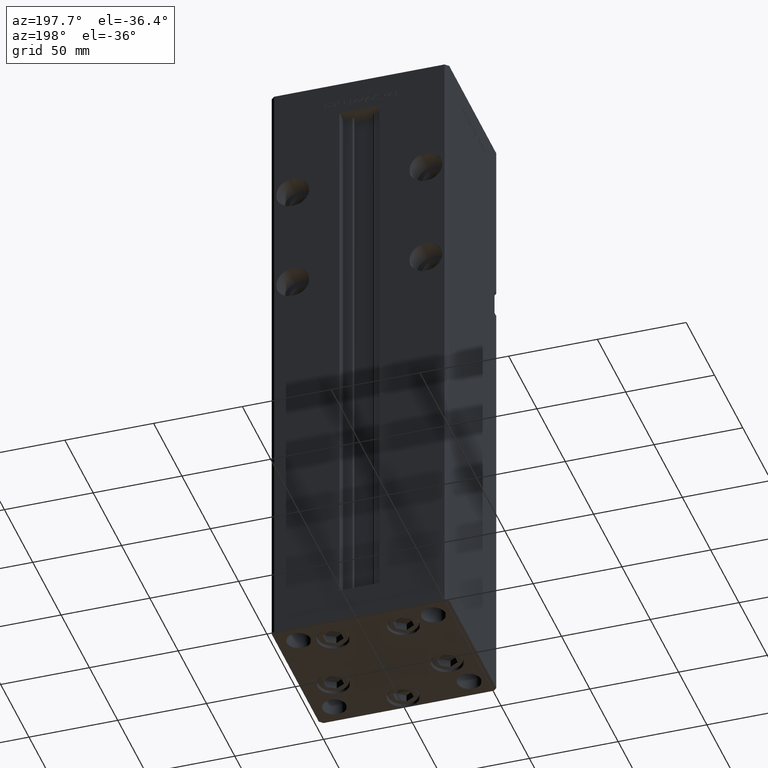
[diagram: clean part render]
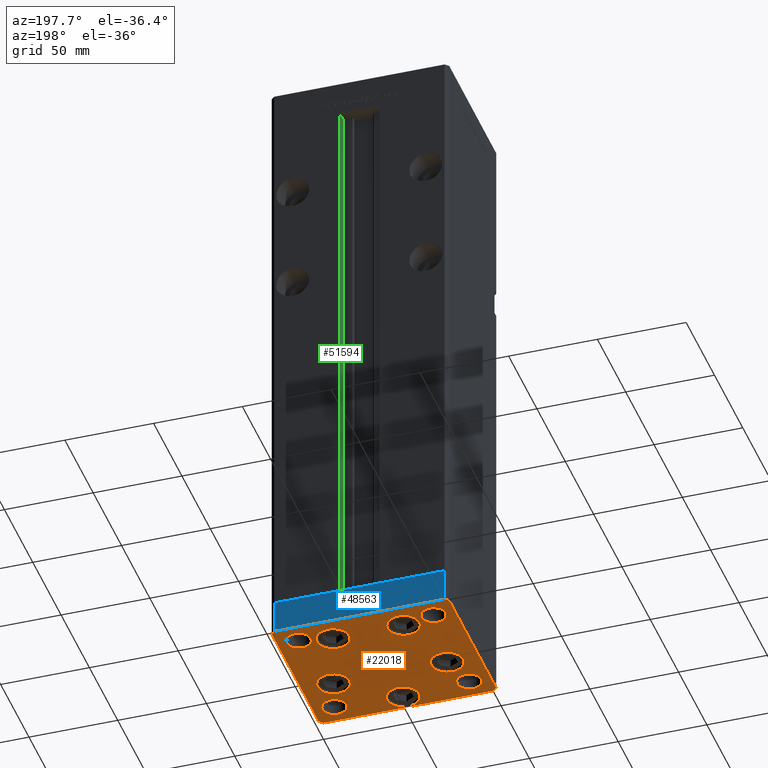
[diagram: same view with three faces highlighted in distinct colors, each labeled with its STEP entity id]
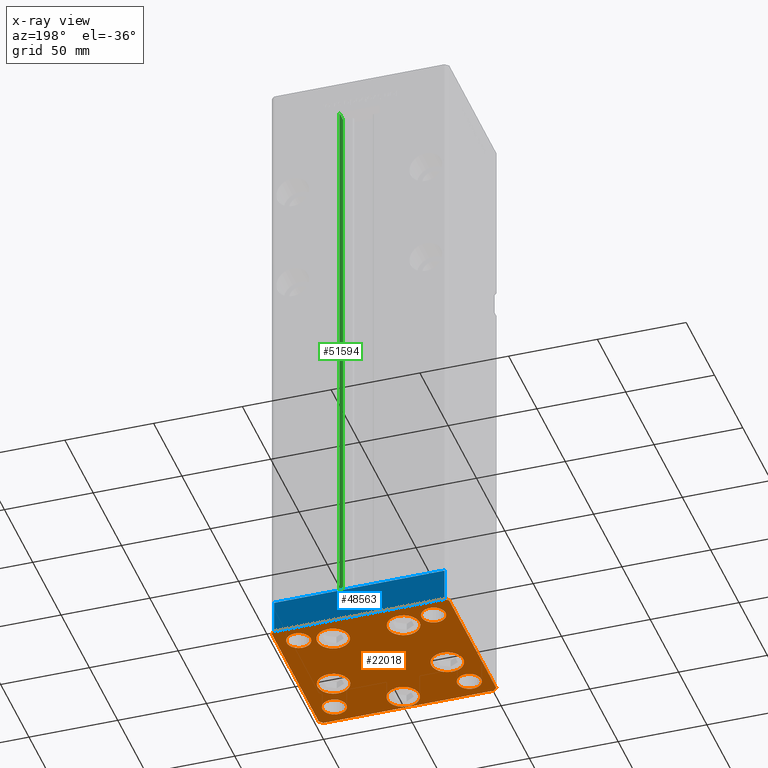
[diagram: x-ray of the same camera — body ghosted, the three highlighted faces saturated]
A machine part, auxiliary view with three faces highlighted in distinct colors.
The next image is the same camera in x-ray (body ghosted, the three faces saturated) — at least one of them is partly hidden behind the body in this view.
Their STEP definitions:

[orange] entity #22018 — the highlighted planar face has unit normal (0, 0, -1).
#442 = ORIENTED_EDGE ( 'NONE', *, *, #49301, .T. ) ;
#770 = VERTEX_POINT ( 'NONE', #25082 ) ;
#813 = LINE ( 'NONE', #26330, #30819 ) ;
#1124 = CARTESIAN_POINT ( 'NONE',  ( -41.05550741379015278, -11.33333333333333925, 0.000000000000000000 ) ) ;
#1313 = VERTEX_POINT ( 'NONE', #20926 ) ;
#1496 = DIRECTION ( 'NONE',  ( 1.000000000000000000, 0.000000000000000000, 0.000000000000000000 ) ) ;
#1670 = CARTESIAN_POINT ( 'NONE',  ( 38.00000000000000000, 31.49999999999999289, 0.000000000000000000 ) ) ;
#1911 = VERTEX_POINT ( 'NONE', #36591 ) ;
#1967 = VERTEX_POINT ( 'NONE', #36054 ) ;
#2171 = CARTESIAN_POINT ( 'NONE',  ( -10.82068048781373903, 27.62499999999999645, 0.000000000000000000 ) ) ;
#3031 = CARTESIAN_POINT ( 'NONE',  ( -37.99999999999999289, -31.50000000000000000, 0.000000000000000000 ) ) ;
#3174 = FACE_BOUND ( 'NONE', #23660, .T. ) ;
#3301 = DIRECTION ( 'NONE',  ( 1.000000000000000000, 0.000000000000000000, 0.000000000000000000 ) ) ;
#3444 = FACE_BOUND ( 'NONE', #9902, .T. ) ;
#3625 = DIRECTION ( 'NONE',  ( 1.000000000000000000, 0.000000000000000000, 0.000000000000000000 ) ) ;
#3669 = DIRECTION ( 'NONE',  ( 1.000000000000000000, 0.000000000000000000, 0.000000000000000000 ) ) ;
#3917 = VERTEX_POINT ( 'NONE', #43814 ) ;
#4086 = DIRECTION ( 'NONE',  ( 1.000000000000000000, 0.000000000000000000, 0.000000000000000000 ) ) ;
#4414 = ORIENTED_EDGE ( 'NONE', *, *, #47294, .T. ) ;
#4649 = CIRCLE ( 'NONE', #21803, 6.749999999999999112 ) ;
#4980 = DIRECTION ( 'NONE',  ( 1.000000000000000000, 0.000000000000000000, 0.000000000000000000 ) ) ;
#5003 = DIRECTION ( 'NONE',  ( 0.000000000000000000, -0.000000000000000000, -1.000000000000000000 ) ) ;
#5020 = VERTEX_POINT ( 'NONE', #13724 ) ;
#5283 = CARTESIAN_POINT ( 'NONE',  ( -50.00000000000000000, -41.50000000000000000, 0.000000000000000000 ) ) ;
#5654 = DIRECTION ( 'NONE',  ( 1.000000000000000000, 0.000000000000000000, 0.000000000000000000 ) ) ;
#5802 = CARTESIAN_POINT ( 'NONE',  ( 4.163799117101000559E-15, -34.00000000000000000, 0.000000000000000000 ) ) ;
#5861 = VERTEX_POINT ( 'NONE', #7631 ) ;
#6026 = VECTOR ( 'NONE', #18346, 1000.000000000000000 ) ;
#6475 = EDGE_CURVE ( 'NONE', #40592, #5861, #13080, .T. ) ;
#6480 = LINE ( 'NONE', #38743, #8886 ) ;
#7154 = VERTEX_POINT ( 'NONE', #1124 ) ;
#7214 = CARTESIAN_POINT ( 'NONE',  ( 0.000000000000000000, 0.000000000000000000, 0.000000000000000000 ) ) ;
#7306 = EDGE_CURVE ( 'NONE', #25711, #48736, #47472, .T. ) ;
#7313 = VECTOR ( 'NONE', #25738, 1000.000000000000114 ) ;
#7359 = DIRECTION ( 'NONE',  ( -0.000000000000000000, 0.000000000000000000, 1.000000000000000000 ) ) ;
#7425 = CARTESIAN_POINT ( 'NONE',  ( -32.05550741379015278, -11.33333333333333925, 0.000000000000000000 ) ) ;
#7631 = CARTESIAN_POINT ( 'NONE',  ( -47.99999999999999289, -43.50000000000001421, 0.000000000000000000 ) ) ;
#7756 = AXIS2_PLACEMENT_3D ( 'NONE', #21316, #21054, #17031 ) ;
#7814 = VERTEX_POINT ( 'NONE', #47629 ) ;
#7998 = EDGE_CURVE ( 'NONE', #50356, #10038, #6480, .T. ) ;
#8063 = EDGE_CURVE ( 'NONE', #31669, #18444, #40618, .T. ) ;
#8078 = DIRECTION ( 'NONE',  ( 1.000000000000000000, 0.000000000000000000, 0.000000000000000000 ) ) ;
#8886 = VECTOR ( 'NONE', #10007, 1000.000000000000000 ) ;
#8952 = ORIENTED_EDGE ( 'NONE', *, *, #34803, .T. ) ;
#9023 = CARTESIAN_POINT ( 'NONE',  ( -47.99999999999999289, -43.50000000000001421, 0.000000000000000000 ) ) ;
#9197 = DIRECTION ( 'NONE',  ( 1.000000000000000000, 0.000000000000000000, 0.000000000000000000 ) ) ;
#9372 = CARTESIAN_POINT ( 'NONE',  ( 49.99999999999992184, 41.49999999999998579, 0.000000000000000000 ) ) ;
#9563 = AXIS2_PLACEMENT_3D ( 'NONE', #26098, #42494, #34698 ) ;
#9887 = EDGE_CURVE ( 'NONE', #1967, #5020, #4649, .T. ) ;
#9902 = EDGE_LOOP ( 'NONE', ( #50190, #21734 ) ) ;
#10002 = CARTESIAN_POINT ( 'NONE',  ( -38.00000000000000000, 31.50000000000000000, 0.000000000000000000 ) ) ;
#10007 = DIRECTION ( 'NONE',  ( -1.000000000000000000, -3.614007241618350743E-16, 0.000000000000000000 ) ) ;
#10038 = VERTEX_POINT ( 'NONE', #15348 ) ;
#10108 = EDGE_CURVE ( 'NONE', #1911, #7814, #48388, .T. ) ;
#10748 = CARTESIAN_POINT ( 'NONE',  ( 32.05550741379015278, -11.33333333333333037, 0.000000000000000000 ) ) ;
#11147 = AXIS2_PLACEMENT_3D ( 'NONE', #27907, #35991, #31679 ) ;
#11248 = DIRECTION ( 'NONE',  ( -0.000000000000000000, 0.000000000000000000, 1.000000000000000000 ) ) ;
#11273 = VERTEX_POINT ( 'NONE', #21648 ) ;
#11400 = CARTESIAN_POINT ( 'NONE',  ( -38.00000000000000000, 31.50000000000000000, 0.000000000000000000 ) ) ;
#11517 = FACE_BOUND ( 'NONE', #42816, .T. ) ;
#11760 = EDGE_LOOP ( 'NONE', ( #21967, #442 ) ) ;
#12159 = CARTESIAN_POINT ( 'NONE',  ( 38.00000000000000000, -31.49999999999999289, 0.000000000000000000 ) ) ;
#12358 = CARTESIAN_POINT ( 'NONE',  ( 23.05550741379014923, -11.33333333333333037, 0.000000000000000000 ) ) ;
#12426 = ORIENTED_EDGE ( 'NONE', *, *, #41968, .F. ) ;
#12535 = DIRECTION ( 'NONE',  ( 0.000000000000000000, -0.000000000000000000, -1.000000000000000000 ) ) ;
#12804 = ORIENTED_EDGE ( 'NONE', *, *, #6475, .T. ) ;
#13080 = LINE ( 'NONE', #5283, #38859 ) ;
#13467 = EDGE_CURVE ( 'NONE', #11273, #50356, #46159, .T. ) ;
#13591 = CIRCLE ( 'NONE', #16154, 9.000000000000001776 ) ;
#13724 = CARTESIAN_POINT ( 'NONE',  ( 31.25000000000000000, 31.49999999999999289, 0.000000000000000000 ) ) ;
#13742 = CIRCLE ( 'NONE', #11147, 9.000000000000000000 ) ;
#14737 = CARTESIAN_POINT ( 'NONE',  ( 41.05550741379015278, -11.33333333333332860, 0.000000000000000000 ) ) ;
#14799 = CARTESIAN_POINT ( 'NONE',  ( 10.82068048781373193, 27.62500000000000000, 0.000000000000000000 ) ) ;
#14829 = ORIENTED_EDGE ( 'NONE', *, *, #7998, .T. ) ;
#15276 = FACE_BOUND ( 'NONE', #23020, .T. ) ;
#15348 = CARTESIAN_POINT ( 'NONE',  ( -48.00000000000000711, 43.49999999999996447, 0.000000000000000000 ) ) ;
#15401 = DIRECTION ( 'NONE',  ( 1.000000000000000000, 0.000000000000000000, 0.000000000000000000 ) ) ;
#16078 = FACE_BOUND ( 'NONE', #47770, .T. ) ;
#16154 = AXIS2_PLACEMENT_3D ( 'NONE', #10748, #27375, #27908 ) ;
#16857 = CARTESIAN_POINT ( 'NONE',  ( 50.00000000000000000, -41.49999999999999289, 0.000000000000000000 ) ) ;
#17031 = DIRECTION ( 'NONE',  ( 1.000000000000000000, 0.000000000000000000, 0.000000000000000000 ) ) ;
#17454 = ORIENTED_EDGE ( 'NONE', *, *, #44302, .T. ) ;
#17490 = CARTESIAN_POINT ( 'NONE',  ( -31.25000000000000000, 31.50000000000000000, 0.000000000000000000 ) ) ;
#18234 = ORIENTED_EDGE ( 'NONE', *, *, #39343, .T. ) ;
#18346 = DIRECTION ( 'NONE',  ( -0.7071067811865463515, -0.7071067811865487940, 0.000000000000000000 ) ) ;
#18444 = VERTEX_POINT ( 'NONE', #2171 ) ;
#18473 = EDGE_CURVE ( 'NONE', #52485, #33515, #30596, .T. ) ;
#19254 = CARTESIAN_POINT ( 'NONE',  ( 47.99999999999999289, -43.50000000000001421, 0.000000000000000000 ) ) ;
#19419 = DIRECTION ( 'NONE',  ( 0.000000000000000000, -0.000000000000000000, -1.000000000000000000 ) ) ;
#19710 = CARTESIAN_POINT ( 'NONE',  ( -28.82068048781373548, 27.62499999999999645, 0.000000000000000000 ) ) ;
#19777 = CIRCLE ( 'NONE', #36081, 6.749999999999999112 ) ;
#20218 = CARTESIAN_POINT ( 'NONE',  ( 32.05550741379015278, -11.33333333333333037, 0.000000000000000000 ) ) ;
#20443 = AXIS2_PLACEMENT_3D ( 'NONE', #20218, #40912, #3301 ) ;
#20733 = DIRECTION ( 'NONE',  ( 0.7071067811865463515, 0.7071067811865487940, 0.000000000000000000 ) ) ;
#20926 = CARTESIAN_POINT ( 'NONE',  ( -44.75000000000000000, 31.50000000000000000, 0.000000000000000000 ) ) ;
#21054 = DIRECTION ( 'NONE',  ( 0.000000000000000000, -0.000000000000000000, -1.000000000000000000 ) ) ;
#21316 = CARTESIAN_POINT ( 'NONE',  ( -32.05550741379015278, -11.33333333333333925, 0.000000000000000000 ) ) ;
#21459 = EDGE_CURVE ( 'NONE', #1313, #24065, #22880, .T. ) ;
#21547 = CARTESIAN_POINT ( 'NONE',  ( 38.00000000000000000, 31.49999999999999289, 0.000000000000000000 ) ) ;
#21648 = CARTESIAN_POINT ( 'NONE',  ( 49.99999999999992184, 41.49999999999998579, 0.000000000000000000 ) ) ;
#21734 = ORIENTED_EDGE ( 'NONE', *, *, #38108, .T. ) ;
#21803 = AXIS2_PLACEMENT_3D ( 'NONE', #1670, #46548, #42518 ) ;
#21967 = ORIENTED_EDGE ( 'NONE', *, *, #8063, .T. ) ;
#22018 = ADVANCED_FACE ( 'NONE', ( #35690, #31647, #3174, #11517, #52080, #23322, #3444, #16078, #28143, #15276 ), #48033, .T. ) ;
#22201 = AXIS2_PLACEMENT_3D ( 'NONE', #21547, #41691, #9197 ) ;
#22504 = ORIENTED_EDGE ( 'NONE', *, *, #26318, .F. ) ;
#22864 = DIRECTION ( 'NONE',  ( 1.000000000000000000, 0.000000000000000000, 0.000000000000000000 ) ) ;
#22880 = CIRCLE ( 'NONE', #50342, 6.749999999999999112 ) ;
#23020 = EDGE_LOOP ( 'NONE', ( #8952, #44659 ) ) ;
#23157 = LINE ( 'NONE', #27175, #6026 ) ;
#23322 = FACE_BOUND ( 'NONE', #46710, .T. ) ;
#23660 = EDGE_LOOP ( 'NONE', ( #17454, #18234 ) ) ;
#24026 = CIRCLE ( 'NONE', #7756, 9.000000000000001776 ) ;
#24037 = CARTESIAN_POINT ( 'NONE',  ( 38.00000000000000000, -31.49999999999999289, 0.000000000000000000 ) ) ;
#24065 = VERTEX_POINT ( 'NONE', #17490 ) ;
#24086 = ORIENTED_EDGE ( 'NONE', *, *, #35641, .T. ) ;
#24173 = CARTESIAN_POINT ( 'NONE',  ( 19.82068048781373193, 27.62500000000000000, 0.000000000000000000 ) ) ;
#24288 = CARTESIAN_POINT ( 'NONE',  ( 28.82068048781372838, 27.62500000000000000, 0.000000000000000000 ) ) ;
#24634 = ORIENTED_EDGE ( 'NONE', *, *, #48854, .T. ) ;
#25082 = CARTESIAN_POINT ( 'NONE',  ( -23.05550741379014923, -11.33333333333333748, 0.000000000000000000 ) ) ;
#25305 = VERTEX_POINT ( 'NONE', #37991 ) ;
#25429 = CARTESIAN_POINT ( 'NONE',  ( 9.000000000000003553, -34.00000000000000000, 0.000000000000000000 ) ) ;
#25603 = VECTOR ( 'NONE', #37538, 1000.000000000000000 ) ;
#25685 = AXIS2_PLACEMENT_3D ( 'NONE', #10002, #42235, #50288 ) ;
#25711 = VERTEX_POINT ( 'NONE', #14799 ) ;
#25738 = DIRECTION ( 'NONE',  ( -0.7071067811865474617, 0.7071067811865474617, 0.000000000000000000 ) ) ;
#25873 = VERTEX_POINT ( 'NONE', #12358 ) ;
#25908 = VERTEX_POINT ( 'NONE', #14737 ) ;
#26098 = CARTESIAN_POINT ( 'NONE',  ( 19.82068048781373193, 27.62500000000000000, 0.000000000000000000 ) ) ;
#26318 = EDGE_CURVE ( 'NONE', #5020, #1967, #34173, .T. ) ;
#26330 = CARTESIAN_POINT ( 'NONE',  ( -50.00000000000000711, 41.49999999999995026, 0.000000000000000000 ) ) ;
#26564 = CIRCLE ( 'NONE', #46286, 9.000000000000001776 ) ;
#26614 = DIRECTION ( 'NONE',  ( 1.000000000000000000, 0.000000000000000000, 0.000000000000000000 ) ) ;
#26626 = DIRECTION ( 'NONE',  ( 0.000000000000000000, -0.000000000000000000, -1.000000000000000000 ) ) ;
#26886 = CARTESIAN_POINT ( 'NONE',  ( -19.82068048781373903, 27.62499999999999645, 0.000000000000000000 ) ) ;
#27175 = CARTESIAN_POINT ( 'NONE',  ( -48.00000000000000711, 43.49999999999996447, 0.000000000000000000 ) ) ;
#27375 = DIRECTION ( 'NONE',  ( 0.000000000000000000, -0.000000000000000000, -1.000000000000000000 ) ) ;
#27876 = DIRECTION ( 'NONE',  ( 1.000000000000000000, 0.000000000000000000, 0.000000000000000000 ) ) ;
#27907 = CARTESIAN_POINT ( 'NONE',  ( -19.82068048781373903, 27.62499999999999645, 0.000000000000000000 ) ) ;
#27908 = DIRECTION ( 'NONE',  ( 1.000000000000000000, 0.000000000000000000, 0.000000000000000000 ) ) ;
#28143 = FACE_OUTER_BOUND ( 'NONE', #52037, .T. ) ;
#28397 = LINE ( 'NONE', #16857, #25603 ) ;
#28496 = CARTESIAN_POINT ( 'NONE',  ( -50.00000000000000000, -41.50000000000000000, 0.000000000000000000 ) ) ;
#28566 = AXIS2_PLACEMENT_3D ( 'NONE', #24173, #48886, #8078 ) ;
#29293 = DIRECTION ( 'NONE',  ( 8.360113137237628665E-17, -1.000000000000000000, 0.000000000000000000 ) ) ;
#29416 = LINE ( 'NONE', #9023, #30746 ) ;
#30596 = CIRCLE ( 'NONE', #37471, 9.000000000000000000 ) ;
#30746 = VECTOR ( 'NONE', #4980, 1000.000000000000000 ) ;
#30819 = VECTOR ( 'NONE', #29293, 1000.000000000000000 ) ;
#31090 = ORIENTED_EDGE ( 'NONE', *, *, #46818, .T. ) ;
#31598 = ORIENTED_EDGE ( 'NONE', *, *, #48955, .T. ) ;
#31647 = FACE_BOUND ( 'NONE', #48857, .T. ) ;
#31669 = VERTEX_POINT ( 'NONE', #19710 ) ;
#31679 = DIRECTION ( 'NONE',  ( 1.000000000000000000, 0.000000000000000000, 0.000000000000000000 ) ) ;
#31753 = CIRCLE ( 'NONE', #35227, 6.749999999999999112 ) ;
#32514 = AXIS2_PLACEMENT_3D ( 'NONE', #5802, #5003, #1496 ) ;
#32576 = AXIS2_PLACEMENT_3D ( 'NONE', #3031, #19419, #15401 ) ;
#32691 = CIRCLE ( 'NONE', #9563, 8.999999999999998224 ) ;
#32909 = EDGE_CURVE ( 'NONE', #48365, #38298, #42222, .T. ) ;
#32949 = AXIS2_PLACEMENT_3D ( 'NONE', #50238, #37625, #5654 ) ;
#33515 = VERTEX_POINT ( 'NONE', #25429 ) ;
#33897 = CARTESIAN_POINT ( 'NONE',  ( 47.99999999999999289, -43.50000000000001421, 0.000000000000000000 ) ) ;
#34074 = ORIENTED_EDGE ( 'NONE', *, *, #32909, .T. ) ;
#34173 = CIRCLE ( 'NONE', #22201, 6.749999999999999112 ) ;
#34698 = DIRECTION ( 'NONE',  ( 1.000000000000000000, 0.000000000000000000, 0.000000000000000000 ) ) ;
#34803 = EDGE_CURVE ( 'NONE', #7814, #1911, #37001, .T. ) ;
#35009 = ORIENTED_EDGE ( 'NONE', *, *, #13467, .T. ) ;
#35191 = VECTOR ( 'NONE', #20733, 1000.000000000000000 ) ;
#35227 = AXIS2_PLACEMENT_3D ( 'NONE', #24037, #40436, #3625 ) ;
#35279 = CARTESIAN_POINT ( 'NONE',  ( 50.00000000000000000, -41.49999999999999289, 0.000000000000000000 ) ) ;
#35641 = EDGE_CURVE ( 'NONE', #48736, #25711, #32691, .T. ) ;
#35690 = FACE_BOUND ( 'NONE', #11760, .T. ) ;
#35991 = DIRECTION ( 'NONE',  ( 0.000000000000000000, -0.000000000000000000, -1.000000000000000000 ) ) ;
#36054 = CARTESIAN_POINT ( 'NONE',  ( 44.75000000000000000, 31.49999999999999289, 0.000000000000000000 ) ) ;
#36081 = AXIS2_PLACEMENT_3D ( 'NONE', #12159, #40891, #4086 ) ;
#36573 = CARTESIAN_POINT ( 'NONE',  ( -50.00000000000000711, 41.49999999999995026, 0.000000000000000000 ) ) ;
#36591 = CARTESIAN_POINT ( 'NONE',  ( -44.74999999999999289, -31.50000000000000000, 0.000000000000000000 ) ) ;
#37001 = CIRCLE ( 'NONE', #32576, 6.749999999999999112 ) ;
#37471 = AXIS2_PLACEMENT_3D ( 'NONE', #47045, #38731, #26614 ) ;
#37538 = DIRECTION ( 'NONE',  ( -1.003213576468515193E-15, 1.000000000000000000, 0.000000000000000000 ) ) ;
#37625 = DIRECTION ( 'NONE',  ( 0.000000000000000000, -0.000000000000000000, -1.000000000000000000 ) ) ;
#37991 = CARTESIAN_POINT ( 'NONE',  ( 44.75000000000000000, -31.49999999999999289, 0.000000000000000000 ) ) ;
#38108 = EDGE_CURVE ( 'NONE', #3917, #25305, #31753, .T. ) ;
#38298 = VERTEX_POINT ( 'NONE', #35279 ) ;
#38731 = DIRECTION ( 'NONE',  ( 0.000000000000000000, -0.000000000000000000, -1.000000000000000000 ) ) ;
#38743 = CARTESIAN_POINT ( 'NONE',  ( 47.99999999999990763, 43.50000000000000000, 0.000000000000000000 ) ) ;
#38859 = VECTOR ( 'NONE', #41817, 1000.000000000000114 ) ;
#39185 = AXIS2_PLACEMENT_3D ( 'NONE', #7214, #11248, #27876 ) ;
#39343 = EDGE_CURVE ( 'NONE', #25908, #25873, #40405, .T. ) ;
#39642 = ORIENTED_EDGE ( 'NONE', *, *, #39946, .T. ) ;
#39946 = EDGE_CURVE ( 'NONE', #5861, #48365, #29416, .T. ) ;
#40228 = ORIENTED_EDGE ( 'NONE', *, *, #18473, .T. ) ;
#40374 = CARTESIAN_POINT ( 'NONE',  ( -8.999999999999996447, -34.00000000000000000, 0.000000000000000000 ) ) ;
#40405 = CIRCLE ( 'NONE', #20443, 9.000000000000001776 ) ;
#40436 = DIRECTION ( 'NONE',  ( 0.000000000000000000, -0.000000000000000000, -1.000000000000000000 ) ) ;
#40582 = VERTEX_POINT ( 'NONE', #36573 ) ;
#40592 = VERTEX_POINT ( 'NONE', #28496 ) ;
#40618 = CIRCLE ( 'NONE', #45757, 9.000000000000000000 ) ;
#40891 = DIRECTION ( 'NONE',  ( 0.000000000000000000, -0.000000000000000000, -1.000000000000000000 ) ) ;
#40912 = DIRECTION ( 'NONE',  ( 0.000000000000000000, -0.000000000000000000, -1.000000000000000000 ) ) ;
#41031 = ORIENTED_EDGE ( 'NONE', *, *, #45578, .T. ) ;
#41691 = DIRECTION ( 'NONE',  ( -0.000000000000000000, 0.000000000000000000, 1.000000000000000000 ) ) ;
#41817 = DIRECTION ( 'NONE',  ( 0.7071067811865474617, -0.7071067811865474617, 0.000000000000000000 ) ) ;
#41968 = EDGE_CURVE ( 'NONE', #24065, #1313, #50546, .T. ) ;
#42222 = LINE ( 'NONE', #33897, #35191 ) ;
#42235 = DIRECTION ( 'NONE',  ( -0.000000000000000000, 0.000000000000000000, 1.000000000000000000 ) ) ;
#42494 = DIRECTION ( 'NONE',  ( 0.000000000000000000, -0.000000000000000000, -1.000000000000000000 ) ) ;
#42518 = DIRECTION ( 'NONE',  ( 1.000000000000000000, 0.000000000000000000, 0.000000000000000000 ) ) ;
#42816 = EDGE_LOOP ( 'NONE', ( #40228, #31090 ) ) ;
#43814 = CARTESIAN_POINT ( 'NONE',  ( 31.25000000000000000, -31.49999999999999289, 0.000000000000000000 ) ) ;
#44302 = EDGE_CURVE ( 'NONE', #25873, #25908, #13591, .T. ) ;
#44659 = ORIENTED_EDGE ( 'NONE', *, *, #10108, .T. ) ;
#44670 = ORIENTED_EDGE ( 'NONE', *, *, #21459, .F. ) ;
#44694 = DIRECTION ( 'NONE',  ( 1.000000000000000000, 0.000000000000000000, 0.000000000000000000 ) ) ;
#45578 = EDGE_CURVE ( 'NONE', #38298, #11273, #28397, .T. ) ;
#45757 = AXIS2_PLACEMENT_3D ( 'NONE', #26886, #26626, #22864 ) ;
#46159 = LINE ( 'NONE', #9372, #7313 ) ;
#46286 = AXIS2_PLACEMENT_3D ( 'NONE', #7425, #12535, #3669 ) ;
#46548 = DIRECTION ( 'NONE',  ( -0.000000000000000000, 0.000000000000000000, 1.000000000000000000 ) ) ;
#46578 = ORIENTED_EDGE ( 'NONE', *, *, #7306, .T. ) ;
#46710 = EDGE_LOOP ( 'NONE', ( #52367, #22504 ) ) ;
#46818 = EDGE_CURVE ( 'NONE', #33515, #52485, #48799, .T. ) ;
#47045 = CARTESIAN_POINT ( 'NONE',  ( 4.163799117101000559E-15, -34.00000000000000000, 0.000000000000000000 ) ) ;
#47294 = EDGE_CURVE ( 'NONE', #40582, #40592, #813, .T. ) ;
#47472 = CIRCLE ( 'NONE', #28566, 8.999999999999998224 ) ;
#47606 = EDGE_CURVE ( 'NONE', #770, #7154, #26564, .T. ) ;
#47629 = CARTESIAN_POINT ( 'NONE',  ( -31.24999999999999289, -31.50000000000000000, 0.000000000000000000 ) ) ;
#47770 = EDGE_LOOP ( 'NONE', ( #12426, #44670 ) ) ;
#48033 = PLANE ( 'NONE',  #39185 ) ;
#48365 = VERTEX_POINT ( 'NONE', #19254 ) ;
#48388 = CIRCLE ( 'NONE', #32949, 6.749999999999999112 ) ;
#48736 = VERTEX_POINT ( 'NONE', #24288 ) ;
#48799 = CIRCLE ( 'NONE', #32514, 9.000000000000000000 ) ;
#48854 = EDGE_CURVE ( 'NONE', #7154, #770, #24026, .T. ) ;
#48857 = EDGE_LOOP ( 'NONE', ( #46578, #24086 ) ) ;
#48886 = DIRECTION ( 'NONE',  ( 0.000000000000000000, -0.000000000000000000, -1.000000000000000000 ) ) ;
#48955 = EDGE_CURVE ( 'NONE', #10038, #40582, #23157, .T. ) ;
#49301 = EDGE_CURVE ( 'NONE', #18444, #31669, #13742, .T. ) ;
#50141 = EDGE_CURVE ( 'NONE', #25305, #3917, #19777, .T. ) ;
#50190 = ORIENTED_EDGE ( 'NONE', *, *, #50141, .T. ) ;
#50238 = CARTESIAN_POINT ( 'NONE',  ( -37.99999999999999289, -31.50000000000000000, 0.000000000000000000 ) ) ;
#50288 = DIRECTION ( 'NONE',  ( 1.000000000000000000, 0.000000000000000000, 0.000000000000000000 ) ) ;
#50342 = AXIS2_PLACEMENT_3D ( 'NONE', #11400, #7359, #44694 ) ;
#50343 = EDGE_LOOP ( 'NONE', ( #24634, #52616 ) ) ;
#50356 = VERTEX_POINT ( 'NONE', #52928 ) ;
#50546 = CIRCLE ( 'NONE', #25685, 6.749999999999999112 ) ;
#52037 = EDGE_LOOP ( 'NONE', ( #12804, #39642, #34074, #41031, #35009, #14829, #31598, #4414 ) ) ;
#52080 = FACE_BOUND ( 'NONE', #50343, .T. ) ;
#52367 = ORIENTED_EDGE ( 'NONE', *, *, #9887, .F. ) ;
#52485 = VERTEX_POINT ( 'NONE', #40374 ) ;
#52616 = ORIENTED_EDGE ( 'NONE', *, *, #47606, .T. ) ;
#52928 = CARTESIAN_POINT ( 'NONE',  ( 47.99999999999990763, 43.50000000000000000, 0.000000000000000000 ) ) ;

[blue] entity #48563 — the highlighted planar face has unit normal (-0, 1, 0).
#1364 = ORIENTED_EDGE ( 'NONE', *, *, #37117, .T. ) ;
#1766 = DIRECTION ( 'NONE',  ( 0.000000000000000000, 0.000000000000000000, 1.000000000000000000 ) ) ;
#2064 = LINE ( 'NONE', #7146, #25748 ) ;
#2472 = VECTOR ( 'NONE', #41703, 1000.000000000000000 ) ;
#3965 = ORIENTED_EDGE ( 'NONE', *, *, #49632, .F. ) ;
#6480 = LINE ( 'NONE', #38743, #8886 ) ;
#7146 = CARTESIAN_POINT ( 'NONE',  ( 47.99999999999990763, 43.50000000000000000, -19.00000000000000000 ) ) ;
#7431 = CARTESIAN_POINT ( 'NONE',  ( 47.99999999999990763, 43.50000000000000000, -19.00000000000000000 ) ) ;
#7982 = DIRECTION ( 'NONE',  ( -3.614007241618350743E-16, 1.000000000000000000, 0.000000000000000000 ) ) ;
#7998 = EDGE_CURVE ( 'NONE', #50356, #10038, #6480, .T. ) ;
#8601 = VECTOR ( 'NONE', #1766, 1000.000000000000000 ) ;
#8886 = VECTOR ( 'NONE', #10007, 1000.000000000000000 ) ;
#10007 = DIRECTION ( 'NONE',  ( -1.000000000000000000, -3.614007241618350743E-16, 0.000000000000000000 ) ) ;
#10038 = VERTEX_POINT ( 'NONE', #15348 ) ;
#12442 = LINE ( 'NONE', #37415, #2472 ) ;
#15348 = CARTESIAN_POINT ( 'NONE',  ( -48.00000000000000711, 43.49999999999996447, 0.000000000000000000 ) ) ;
#15829 = ORIENTED_EDGE ( 'NONE', *, *, #7998, .F. ) ;
#16303 = FACE_OUTER_BOUND ( 'NONE', #49127, .T. ) ;
#17368 = LINE ( 'NONE', #51198, #8601 ) ;
#18445 = DIRECTION ( 'NONE',  ( -1.000000000000000000, -3.614007241618350743E-16, 0.000000000000000000 ) ) ;
#19347 = VERTEX_POINT ( 'NONE', #24926 ) ;
#20588 = PLANE ( 'NONE',  #42869 ) ;
#24926 = CARTESIAN_POINT ( 'NONE',  ( -48.00000000000000711, 43.49999999999996447, -19.00000000000000000 ) ) ;
#25748 = VECTOR ( 'NONE', #18445, 1000.000000000000000 ) ;
#26166 = ORIENTED_EDGE ( 'NONE', *, *, #42763, .T. ) ;
#27831 = DIRECTION ( 'NONE',  ( -1.000000000000000000, -3.614007241618350743E-16, 0.000000000000000000 ) ) ;
#37117 = EDGE_CURVE ( 'NONE', #52844, #19347, #2064, .T. ) ;
#37415 = CARTESIAN_POINT ( 'NONE',  ( -48.00000000000000711, 43.49999999999996447, -19.00000000000000000 ) ) ;
#38743 = CARTESIAN_POINT ( 'NONE',  ( 47.99999999999990763, 43.50000000000000000, 0.000000000000000000 ) ) ;
#41703 = DIRECTION ( 'NONE',  ( 0.000000000000000000, 0.000000000000000000, 1.000000000000000000 ) ) ;
#42763 = EDGE_CURVE ( 'NONE', #19347, #10038, #12442, .T. ) ;
#42869 = AXIS2_PLACEMENT_3D ( 'NONE', #7431, #7982, #27831 ) ;
#45861 = CARTESIAN_POINT ( 'NONE',  ( 47.99999999999990763, 43.50000000000000000, -19.00000000000000000 ) ) ;
#48563 = ADVANCED_FACE ( 'NONE', ( #16303 ), #20588, .T. ) ;
#49127 = EDGE_LOOP ( 'NONE', ( #15829, #3965, #1364, #26166 ) ) ;
#49632 = EDGE_CURVE ( 'NONE', #52844, #50356, #17368, .T. ) ;
#50356 = VERTEX_POINT ( 'NONE', #52928 ) ;
#51198 = CARTESIAN_POINT ( 'NONE',  ( 47.99999999999990763, 43.50000000000000000, -19.00000000000000000 ) ) ;
#52844 = VERTEX_POINT ( 'NONE', #45861 ) ;
#52928 = CARTESIAN_POINT ( 'NONE',  ( 47.99999999999990763, 43.50000000000000000, 0.000000000000000000 ) ) ;

[green] entity #51594 — the highlighted planar face has unit normal (1, 0, 0).
#1193 = ORIENTED_EDGE ( 'NONE', *, *, #14419, .F. ) ;
#4325 = DIRECTION ( 'NONE',  ( -0.000000000000000000, -1.000000000000000000, 0.000000000000000000 ) ) ;
#5656 = VECTOR ( 'NONE', #42215, 1000.000000000000000 ) ;
#8903 = CARTESIAN_POINT ( 'NONE',  ( 11.24999999999999645, 0.000000000000000000, 318.5000000000000000 ) ) ;
#10061 = VECTOR ( 'NONE', #38291, 1000.000000000000000 ) ;
#13577 = CARTESIAN_POINT ( 'NONE',  ( 11.24999999999999645, 43.50000000000000000, 0.000000000000000000 ) ) ;
#14419 = EDGE_CURVE ( 'NONE', #25016, #34483, #33618, .T. ) ;
#14695 = AXIS2_PLACEMENT_3D ( 'NONE', #16274, #44740, #40183 ) ;
#15060 = ORIENTED_EDGE ( 'NONE', *, *, #19669, .F. ) ;
#16274 = CARTESIAN_POINT ( 'NONE',  ( 11.24999999999999645, 37.00000000000000000, 0.000000000000000000 ) ) ;
#16447 = CARTESIAN_POINT ( 'NONE',  ( 11.24999999999999645, 37.00000000000000000, 0.000000000000000000 ) ) ;
#19669 = EDGE_CURVE ( 'NONE', #34483, #38901, #50366, .T. ) ;
#19983 = ORIENTED_EDGE ( 'NONE', *, *, #24113, .F. ) ;
#24113 = EDGE_CURVE ( 'NONE', #38901, #47446, #45425, .T. ) ;
#24143 = CARTESIAN_POINT ( 'NONE',  ( 11.24999999999999645, 37.00000000000000000, 318.5000000000000000 ) ) ;
#25016 = VERTEX_POINT ( 'NONE', #42078 ) ;
#27752 = EDGE_LOOP ( 'NONE', ( #15060, #1193, #33905, #19983 ) ) ;
#28618 = PLANE ( 'NONE',  #14695 ) ;
#31048 = CARTESIAN_POINT ( 'NONE',  ( 11.24999999999999645, 43.50000000000000000, 0.000000000000000000 ) ) ;
#33618 = LINE ( 'NONE', #16447, #5656 ) ;
#33905 = ORIENTED_EDGE ( 'NONE', *, *, #47005, .T. ) ;
#34483 = VERTEX_POINT ( 'NONE', #31048 ) ;
#35802 = VECTOR ( 'NONE', #4325, 1000.000000000000000 ) ;
#38291 = DIRECTION ( 'NONE',  ( -0.000000000000000000, -0.000000000000000000, 1.000000000000000000 ) ) ;
#38901 = VERTEX_POINT ( 'NONE', #46124 ) ;
#40183 = DIRECTION ( 'NONE',  ( 0.000000000000000000, 0.000000000000000000, -1.000000000000000000 ) ) ;
#42056 = DIRECTION ( 'NONE',  ( -0.000000000000000000, -0.000000000000000000, 1.000000000000000000 ) ) ;
#42078 = CARTESIAN_POINT ( 'NONE',  ( 11.24999999999999645, 37.00000000000000000, 0.000000000000000000 ) ) ;
#42215 = DIRECTION ( 'NONE',  ( 0.000000000000000000, 1.000000000000000000, 0.000000000000000000 ) ) ;
#44740 = DIRECTION ( 'NONE',  ( 1.000000000000000000, -0.000000000000000000, 0.000000000000000000 ) ) ;
#45425 = LINE ( 'NONE', #8903, #35802 ) ;
#46124 = CARTESIAN_POINT ( 'NONE',  ( 11.24999999999998934, 43.50000000000000000, 318.5000000000000000 ) ) ;
#46349 = CARTESIAN_POINT ( 'NONE',  ( 11.24999999999999645, 37.00000000000000000, 0.000000000000000000 ) ) ;
#47005 = EDGE_CURVE ( 'NONE', #25016, #47446, #49318, .T. ) ;
#47445 = FACE_OUTER_BOUND ( 'NONE', #27752, .T. ) ;
#47446 = VERTEX_POINT ( 'NONE', #24143 ) ;
#49318 = LINE ( 'NONE', #46349, #53108 ) ;
#50366 = LINE ( 'NONE', #13577, #10061 ) ;
#51594 = ADVANCED_FACE ( 'NONE', ( #47445 ), #28618, .F. ) ;
#53108 = VECTOR ( 'NONE', #42056, 1000.000000000000000 ) ;